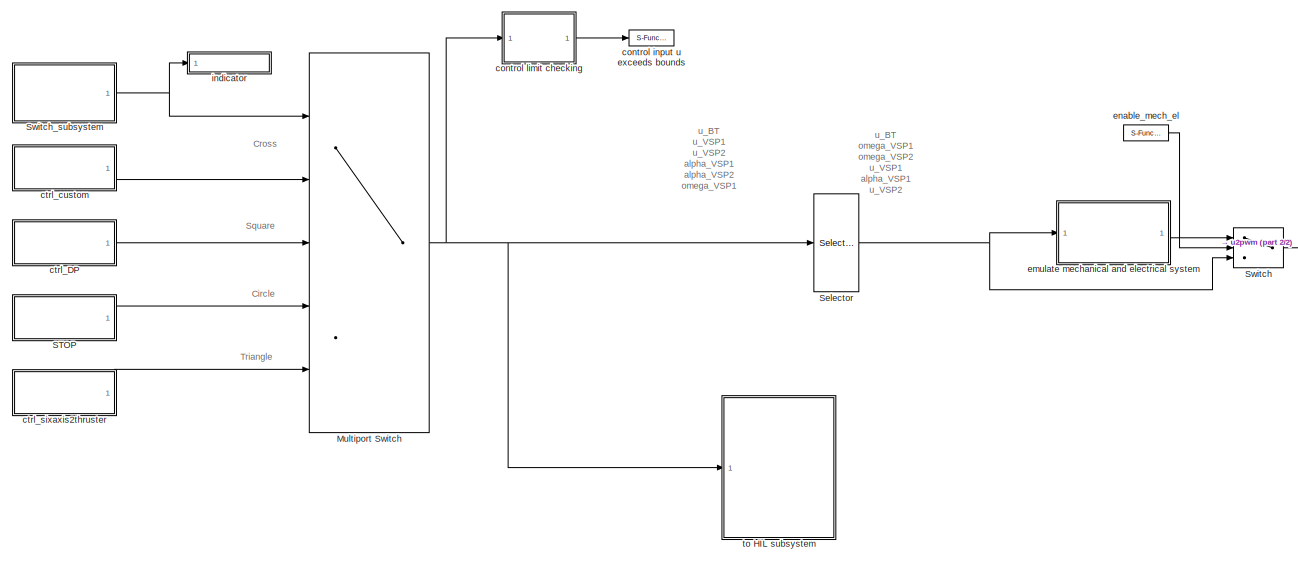
[diagram: root canvas - part 1/2, most of the canvas]
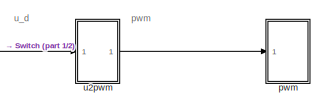
[diagram: root canvas - part 2/2, middle right region]
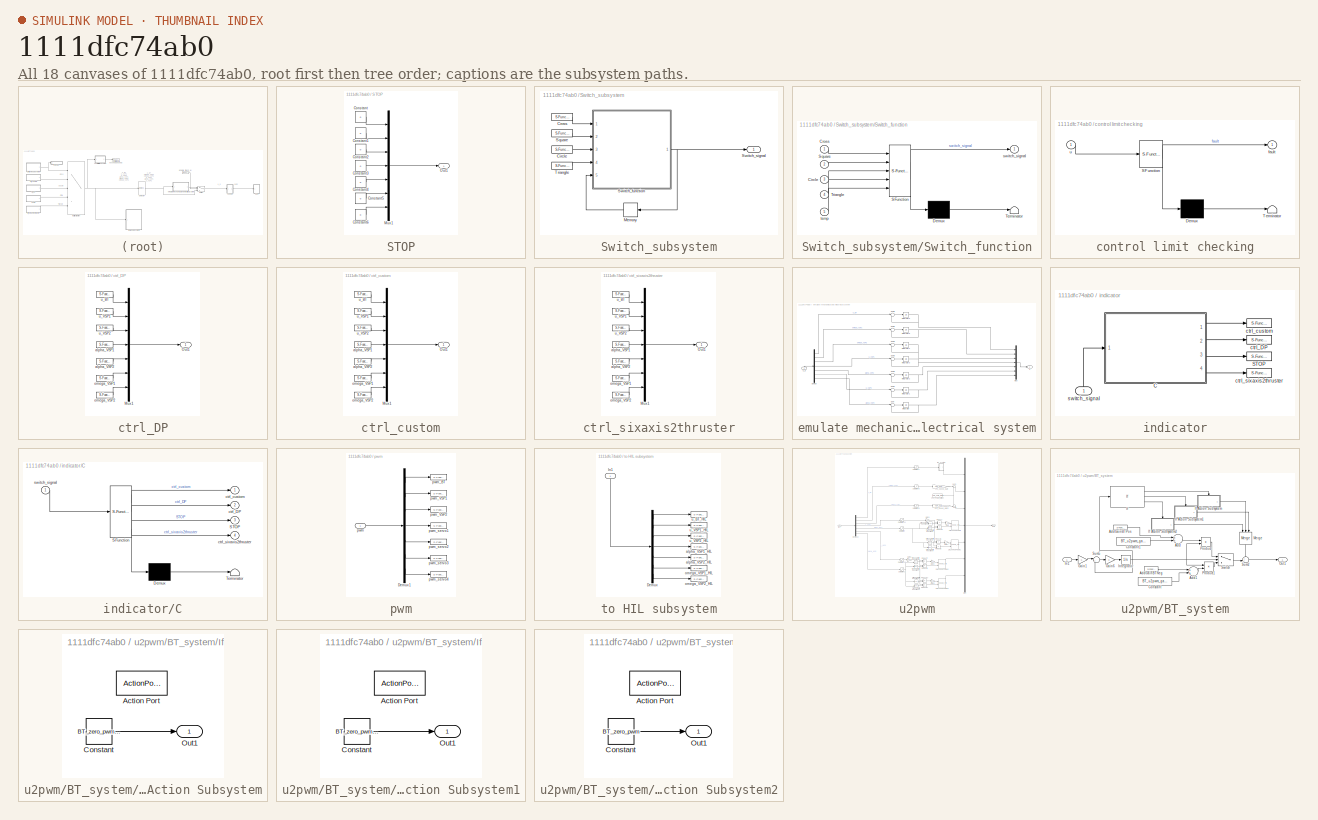
[diagram: thumbnail index - all 18 canvases of the model, root first then tree order]
MODEL slx_1111dfc74ab0
KIND model
CONFIG AbsTol = auto
CONFIG EnableMultiTasking = on
CONFIG FixedStep = 0.01
CONFIG MaxStep = auto
CONFIG MinStep = auto
CONFIG RelTol = 1e-3
CONFIG SampleTimeConstraint = Unconstrained
CONFIG Solver = ode4
CONFIG SolverName = ode4
CONFIG StartTime = 0.0
CONFIG StopTime = inf
BLOCK [MultiPortSwitch] Multiport Switch
  InputSameDT = off
  Inputs = 4
  Ports = [5, 1]
  SaturateOnIntegerOverflow = off
BLOCK [SubSystem] STOP
  Ports = [0, 1]
  RequestExecContextInheritance = off
  Variant = off
BLOCK [Constant] STOP/Constant
  Value = 0
BLOCK [Constant] STOP/Constant1
  Value = 0
BLOCK [Constant] STOP/Constant2
  Value = 0
BLOCK [Constant] STOP/Constant3
  Value = 0
BLOCK [Constant] STOP/Constant4
  Value = 0
BLOCK [Constant] STOP/Constant5
  Value = 0
BLOCK [Constant] STOP/Constant6
  Value = 0
BLOCK [Mux] STOP/Mux1
  DisplayOption = bar
  Inputs = 7
  Ports = [7, 1]
BLOCK [Outport] STOP/Out1
  IconDisplay = Port number
BLOCK [Selector] Selector
  IndexOptions = Index vector (dialog)
  Indices = [1 6 7 2 4 3 5]
  InputPortWidth = 7
  OutputSizes = 1
  Ports = [1, 1]
BLOCK [Switch] Switch
  Criteria = u2 ~= 0
  InputSameDT = off
  SaturateOnIntegerOverflow = off
BLOCK [SubSystem] Switch_subsystem
  Ports = [0, 1]
  RequestExecContextInheritance = off
  Variant = off
BLOCK [S-Function] Switch_subsystem/Circle
  CopyFcn = NIVeriStand_MDL_functions('', 'IO_copy');
  DeleteFcn = NIVeriStand_MDL_functions('', 'IO_delete');
  EnableBusSupport = off
  FunctionName = NIVeriStandIO
  MoveFcn = set_param(gcb, 'Mask', 'on');
  Parameters = width dtype portnum stime stype btype
  Ports = [0, 1]
  Priority = 2
  SFcnIsStateOwnerBlock = off
  SFunctionDeploymentMode = off
BLOCK [S-Function] Switch_subsystem/Cross
  CopyFcn = NIVeriStand_MDL_functions('', 'IO_copy');
  DeleteFcn = NIVeriStand_MDL_functions('', 'IO_delete');
  EnableBusSupport = off
  FunctionName = NIVeriStandIO
  MoveFcn = set_param(gcb, 'Mask', 'on');
  Parameters = width dtype portnum stime stype btype
  Ports = [0, 1]
  Priority = 3
  SFcnIsStateOwnerBlock = off
  SFunctionDeploymentMode = off
BLOCK [Memory] Switch_subsystem/Memory
  X0 = 4
BLOCK [S-Function] Switch_subsystem/Square
  CopyFcn = NIVeriStand_MDL_functions('', 'IO_copy');
  DeleteFcn = NIVeriStand_MDL_functions('', 'IO_delete');
  EnableBusSupport = off
  FunctionName = NIVeriStandIO
  MoveFcn = set_param(gcb, 'Mask', 'on');
  Parameters = width dtype portnum stime stype btype
  Ports = [0, 1]
  Priority = 4
  SFcnIsStateOwnerBlock = off
  SFunctionDeploymentMode = off
BLOCK [SubSystem] Switch_subsystem/Switch_function
  ErrorFcn = Stateflow.Translate.translate
  PermitHierarchicalResolution = ExplicitOnly
  Ports = [5, 1]
  RequestExecContextInheritance = off
  SFBlockType = MATLAB Function
  TreatAsAtomicUnit = on
  Variant = off
BLOCK [Demux] Switch_subsystem/Switch_function/ Demux 
  Outputs = 1
  Ports = [1, 1]
BLOCK [S-Function] Switch_subsystem/Switch_function/ SFunction 
  EnableBusSupport = on
  FunctionName = sf_sfun
  PortCounts = [5 2]
  Ports = [5, 2]
  SFcnIsStateOwnerBlock = off
  SFunctionDeploymentMode = off
  Tag = Stateflow S-Function u2pwm 2
BLOCK [Terminator] Switch_subsystem/Switch_function/ Terminator 
BLOCK [Inport] Switch_subsystem/Switch_function/Circle
  IconDisplay = Port number
  Port = 3
BLOCK [Inport] Switch_subsystem/Switch_function/Cross
  IconDisplay = Port number
BLOCK [Inport] Switch_subsystem/Switch_function/Square
  IconDisplay = Port number
  Port = 2
BLOCK [Inport] Switch_subsystem/Switch_function/Triangle
  IconDisplay = Port number
  Port = 4
BLOCK [Outport] Switch_subsystem/Switch_function/switch_signal
  IconDisplay = Port number
BLOCK [Inport] Switch_subsystem/Switch_function/temp
  IconDisplay = Port number
  Port = 5
BLOCK [Outport] Switch_subsystem/Switch_signal
  IconDisplay = Port number
BLOCK [S-Function] Switch_subsystem/Triangle
  CopyFcn = NIVeriStand_MDL_functions('', 'IO_copy');
  DeleteFcn = NIVeriStand_MDL_functions('', 'IO_delete');
  EnableBusSupport = off
  FunctionName = NIVeriStandIO
  MoveFcn = set_param(gcb, 'Mask', 'on');
  Parameters = width dtype portnum stime stype btype
  Ports = [0, 1]
  Priority = 1
  SFcnIsStateOwnerBlock = off
  SFunctionDeploymentMode = off
BLOCK [S-Function] control input u exceeds bounds
  CopyFcn = NIVeriStand_MDL_functions('', 'IO_copy');
  DeleteFcn = NIVeriStand_MDL_functions('', 'IO_delete');
  EnableBusSupport = off
  FunctionName = NIVeriStandIO
  MoveFcn = set_param(gcb, 'Mask', 'on');
  Parameters = width dtype portnum stime stype btype
  Ports = [1]
  Priority = 1
  SFcnIsStateOwnerBlock = off
  SFunctionDeploymentMode = off
BLOCK [SubSystem] control limit checking
  ErrorFcn = Stateflow.Translate.translate
  PermitHierarchicalResolution = ExplicitOnly
  Ports = [1, 1]
  RequestExecContextInheritance = off
  SFBlockType = MATLAB Function
  TreatAsAtomicUnit = on
  Variant = off
BLOCK [Demux] control limit checking/ Demux 
  Outputs = 1
  Ports = [1, 1]
BLOCK [S-Function] control limit checking/ SFunction 
  EnableBusSupport = on
  FunctionName = sf_sfun
  PortCounts = [1 2]
  Ports = [1, 2]
  SFcnIsStateOwnerBlock = off
  SFunctionDeploymentMode = off
  Tag = Stateflow S-Function u2pwm 3
BLOCK [Terminator] control limit checking/ Terminator 
BLOCK [Outport] control limit checking/fault
  IconDisplay = Port number
BLOCK [Inport] control limit checking/u
  IconDisplay = Port number
BLOCK [SubSystem] ctrl_DP
  Ports = [0, 1]
  RequestExecContextInheritance = off
  Variant = off
BLOCK [Mux] ctrl_DP/Mux1
  DisplayOption = bar
  Inputs = 7
  Ports = [7, 1]
BLOCK [Outport] ctrl_DP/Out1
  IconDisplay = Port number
BLOCK [S-Function] ctrl_DP/alpha_VSP1
  CopyFcn = NIVeriStand_MDL_functions('', 'IO_copy');
  DeleteFcn = NIVeriStand_MDL_functions('', 'IO_delete');
  EnableBusSupport = off
  FunctionName = NIVeriStandIO
  MoveFcn = set_param(gcb, 'Mask', 'on');
  Parameters = width dtype portnum stime stype btype
  Ports = [0, 1]
  Priority = 6
  SFcnIsStateOwnerBlock = off
  SFunctionDeploymentMode = off
BLOCK [S-Function] ctrl_DP/alpha_VSP2
  CopyFcn = NIVeriStand_MDL_functions('', 'IO_copy');
  DeleteFcn = NIVeriStand_MDL_functions('', 'IO_delete');
  EnableBusSupport = off
  FunctionName = NIVeriStandIO
  MoveFcn = set_param(gcb, 'Mask', 'on');
  Parameters = width dtype portnum stime stype btype
  Ports = [0, 1]
  Priority = 7
  SFcnIsStateOwnerBlock = off
  SFunctionDeploymentMode = off
BLOCK [S-Function] ctrl_DP/omega_VSP1
  CopyFcn = NIVeriStand_MDL_functions('', 'IO_copy');
  DeleteFcn = NIVeriStand_MDL_functions('', 'IO_delete');
  EnableBusSupport = off
  FunctionName = NIVeriStandIO
  MoveFcn = set_param(gcb, 'Mask', 'on');
  Parameters = width dtype portnum stime stype btype
  Ports = [0, 1]
  Priority = 3
  SFcnIsStateOwnerBlock = off
  SFunctionDeploymentMode = off
BLOCK [S-Function] ctrl_DP/omega_VSP2
  CopyFcn = NIVeriStand_MDL_functions('', 'IO_copy');
  DeleteFcn = NIVeriStand_MDL_functions('', 'IO_delete');
  EnableBusSupport = off
  FunctionName = NIVeriStandIO
  MoveFcn = set_param(gcb, 'Mask', 'on');
  Parameters = width dtype portnum stime stype btype
  Ports = [0, 1]
  Priority = 4
  SFcnIsStateOwnerBlock = off
  SFunctionDeploymentMode = off
BLOCK [S-Function] ctrl_DP/u_BT
  CopyFcn = NIVeriStand_MDL_functions('', 'IO_copy');
  DeleteFcn = NIVeriStand_MDL_functions('', 'IO_delete');
  EnableBusSupport = off
  FunctionName = NIVeriStandIO
  MoveFcn = set_param(gcb, 'Mask', 'on');
  Parameters = width dtype portnum stime stype btype
  Ports = [0, 1]
  Priority = 1
  SFcnIsStateOwnerBlock = off
  SFunctionDeploymentMode = off
BLOCK [S-Function] ctrl_DP/u_VSP1
  CopyFcn = NIVeriStand_MDL_functions('', 'IO_copy');
  DeleteFcn = NIVeriStand_MDL_functions('', 'IO_delete');
  EnableBusSupport = off
  FunctionName = NIVeriStandIO
  MoveFcn = set_param(gcb, 'Mask', 'on');
  Parameters = width dtype portnum stime stype btype
  Ports = [0, 1]
  Priority = 5
  SFcnIsStateOwnerBlock = off
  SFunctionDeploymentMode = off
BLOCK [S-Function] ctrl_DP/u_VSP2
  CopyFcn = NIVeriStand_MDL_functions('', 'IO_copy');
  DeleteFcn = NIVeriStand_MDL_functions('', 'IO_delete');
  EnableBusSupport = off
  FunctionName = NIVeriStandIO
  MoveFcn = set_param(gcb, 'Mask', 'on');
  Parameters = width dtype portnum stime stype btype
  Ports = [0, 1]
  Priority = 2
  SFcnIsStateOwnerBlock = off
  SFunctionDeploymentMode = off
BLOCK [SubSystem] ctrl_custom
  Ports = [0, 1]
  RequestExecContextInheritance = off
  Variant = off
BLOCK [Mux] ctrl_custom/Mux1
  DisplayOption = bar
  Inputs = 7
  Ports = [7, 1]
BLOCK [Outport] ctrl_custom/Out1
  IconDisplay = Port number
BLOCK [S-Function] ctrl_custom/alpha_VSP1
  CopyFcn = NIVeriStand_MDL_functions('', 'IO_copy');
  DeleteFcn = NIVeriStand_MDL_functions('', 'IO_delete');
  EnableBusSupport = off
  FunctionName = NIVeriStandIO
  MoveFcn = set_param(gcb, 'Mask', 'on');
  Parameters = width dtype portnum stime stype btype
  Ports = [0, 1]
  Priority = 6
  SFcnIsStateOwnerBlock = off
  SFunctionDeploymentMode = off
BLOCK [S-Function] ctrl_custom/alpha_VSP2
  CopyFcn = NIVeriStand_MDL_functions('', 'IO_copy');
  DeleteFcn = NIVeriStand_MDL_functions('', 'IO_delete');
  EnableBusSupport = off
  FunctionName = NIVeriStandIO
  MoveFcn = set_param(gcb, 'Mask', 'on');
  Parameters = width dtype portnum stime stype btype
  Ports = [0, 1]
  Priority = 7
  SFcnIsStateOwnerBlock = off
  SFunctionDeploymentMode = off
BLOCK [S-Function] ctrl_custom/omega_VSP1
  CopyFcn = NIVeriStand_MDL_functions('', 'IO_copy');
  DeleteFcn = NIVeriStand_MDL_functions('', 'IO_delete');
  EnableBusSupport = off
  FunctionName = NIVeriStandIO
  MoveFcn = set_param(gcb, 'Mask', 'on');
  Parameters = width dtype portnum stime stype btype
  Ports = [0, 1]
  Priority = 3
  SFcnIsStateOwnerBlock = off
  SFunctionDeploymentMode = off
BLOCK [S-Function] ctrl_custom/omega_VSP2
  CopyFcn = NIVeriStand_MDL_functions('', 'IO_copy');
  DeleteFcn = NIVeriStand_MDL_functions('', 'IO_delete');
  EnableBusSupport = off
  FunctionName = NIVeriStandIO
  MoveFcn = set_param(gcb, 'Mask', 'on');
  Parameters = width dtype portnum stime stype btype
  Ports = [0, 1]
  Priority = 4
  SFcnIsStateOwnerBlock = off
  SFunctionDeploymentMode = off
BLOCK [S-Function] ctrl_custom/u_BT
  CopyFcn = NIVeriStand_MDL_functions('', 'IO_copy');
  DeleteFcn = NIVeriStand_MDL_functions('', 'IO_delete');
  EnableBusSupport = off
  FunctionName = NIVeriStandIO
  MoveFcn = set_param(gcb, 'Mask', 'on');
  Parameters = width dtype portnum stime stype btype
  Ports = [0, 1]
  Priority = 1
  SFcnIsStateOwnerBlock = off
  SFunctionDeploymentMode = off
BLOCK [S-Function] ctrl_custom/u_VSP1
  CopyFcn = NIVeriStand_MDL_functions('', 'IO_copy');
  DeleteFcn = NIVeriStand_MDL_functions('', 'IO_delete');
  EnableBusSupport = off
  FunctionName = NIVeriStandIO
  MoveFcn = set_param(gcb, 'Mask', 'on');
  Parameters = width dtype portnum stime stype btype
  Ports = [0, 1]
  Priority = 5
  SFcnIsStateOwnerBlock = off
  SFunctionDeploymentMode = off
BLOCK [S-Function] ctrl_custom/u_VSP2
  CopyFcn = NIVeriStand_MDL_functions('', 'IO_copy');
  DeleteFcn = NIVeriStand_MDL_functions('', 'IO_delete');
  EnableBusSupport = off
  FunctionName = NIVeriStandIO
  MoveFcn = set_param(gcb, 'Mask', 'on');
  Parameters = width dtype portnum stime stype btype
  Ports = [0, 1]
  Priority = 2
  SFcnIsStateOwnerBlock = off
  SFunctionDeploymentMode = off
BLOCK [SubSystem] ctrl_sixaxis2thruster
  Ports = [0, 1]
  RequestExecContextInheritance = off
  Variant = off
BLOCK [Mux] ctrl_sixaxis2thruster/Mux1
  DisplayOption = bar
  Inputs = 7
  Ports = [7, 1]
BLOCK [Outport] ctrl_sixaxis2thruster/Out1
  IconDisplay = Port number
BLOCK [S-Function] ctrl_sixaxis2thruster/alpha_VSP1
  CopyFcn = NIVeriStand_MDL_functions('', 'IO_copy');
  DeleteFcn = NIVeriStand_MDL_functions('', 'IO_delete');
  EnableBusSupport = off
  FunctionName = NIVeriStandIO
  MoveFcn = set_param(gcb, 'Mask', 'on');
  Parameters = width dtype portnum stime stype btype
  Ports = [0, 1]
  Priority = 6
  SFcnIsStateOwnerBlock = off
  SFunctionDeploymentMode = off
BLOCK [S-Function] ctrl_sixaxis2thruster/alpha_VSP2
  CopyFcn = NIVeriStand_MDL_functions('', 'IO_copy');
  DeleteFcn = NIVeriStand_MDL_functions('', 'IO_delete');
  EnableBusSupport = off
  FunctionName = NIVeriStandIO
  MoveFcn = set_param(gcb, 'Mask', 'on');
  Parameters = width dtype portnum stime stype btype
  Ports = [0, 1]
  Priority = 7
  SFcnIsStateOwnerBlock = off
  SFunctionDeploymentMode = off
BLOCK [S-Function] ctrl_sixaxis2thruster/omega_VSP1
  CopyFcn = NIVeriStand_MDL_functions('', 'IO_copy');
  DeleteFcn = NIVeriStand_MDL_functions('', 'IO_delete');
  EnableBusSupport = off
  FunctionName = NIVeriStandIO
  MoveFcn = set_param(gcb, 'Mask', 'on');
  Parameters = width dtype portnum stime stype btype
  Ports = [0, 1]
  Priority = 3
  SFcnIsStateOwnerBlock = off
  SFunctionDeploymentMode = off
BLOCK [S-Function] ctrl_sixaxis2thruster/omega_VSP2
  CopyFcn = NIVeriStand_MDL_functions('', 'IO_copy');
  DeleteFcn = NIVeriStand_MDL_functions('', 'IO_delete');
  EnableBusSupport = off
  FunctionName = NIVeriStandIO
  MoveFcn = set_param(gcb, 'Mask', 'on');
  Parameters = width dtype portnum stime stype btype
  Ports = [0, 1]
  Priority = 4
  SFcnIsStateOwnerBlock = off
  SFunctionDeploymentMode = off
BLOCK [S-Function] ctrl_sixaxis2thruster/u_BT
  CopyFcn = NIVeriStand_MDL_functions('', 'IO_copy');
  DeleteFcn = NIVeriStand_MDL_functions('', 'IO_delete');
  EnableBusSupport = off
  FunctionName = NIVeriStandIO
  MoveFcn = set_param(gcb, 'Mask', 'on');
  Parameters = width dtype portnum stime stype btype
  Ports = [0, 1]
  Priority = 1
  SFcnIsStateOwnerBlock = off
  SFunctionDeploymentMode = off
BLOCK [S-Function] ctrl_sixaxis2thruster/u_VSP1
  CopyFcn = NIVeriStand_MDL_functions('', 'IO_copy');
  DeleteFcn = NIVeriStand_MDL_functions('', 'IO_delete');
  EnableBusSupport = off
  FunctionName = NIVeriStandIO
  MoveFcn = set_param(gcb, 'Mask', 'on');
  Parameters = width dtype portnum stime stype btype
  Ports = [0, 1]
  Priority = 5
  SFcnIsStateOwnerBlock = off
  SFunctionDeploymentMode = off
BLOCK [S-Function] ctrl_sixaxis2thruster/u_VSP2
  CopyFcn = NIVeriStand_MDL_functions('', 'IO_copy');
  DeleteFcn = NIVeriStand_MDL_functions('', 'IO_delete');
  EnableBusSupport = off
  FunctionName = NIVeriStandIO
  MoveFcn = set_param(gcb, 'Mask', 'on');
  Parameters = width dtype portnum stime stype btype
  Ports = [0, 1]
  Priority = 2
  SFcnIsStateOwnerBlock = off
  SFunctionDeploymentMode = off
BLOCK [SubSystem] emulate mechanical and electrical system
  Ports = [1, 1]
  RequestExecContextInheritance = off
  Variant = off
BLOCK [Demux] emulate mechanical and electrical system/Demux
  DisplayOption = bar
  Outputs = 7
  Ports = [1, 7]
BLOCK [Integrator] emulate mechanical and electrical system/Integrator
  Ports = [1, 1]
BLOCK [Integrator] emulate mechanical and electrical system/Integrator1
  Ports = [1, 1]
BLOCK [Integrator] emulate mechanical and electrical system/Integrator2
  Ports = [1, 1]
BLOCK [Integrator] emulate mechanical and electrical system/Integrator3
  Ports = [1, 1]
BLOCK [Integrator] emulate mechanical and electrical system/Integrator4
  Ports = [1, 1]
BLOCK [Integrator] emulate mechanical and electrical system/Integrator5
  Ports = [1, 1]
BLOCK [Integrator] emulate mechanical and electrical system/Integrator6
  Ports = [1, 1]
BLOCK [Mux] emulate mechanical and electrical system/Mux
  DisplayOption = bar
  Inputs = 7
  Ports = [7, 1]
BLOCK [Sum] emulate mechanical and electrical system/Sum
  IconShape = round
  InputSameDT = off
  Inputs = |+-
  OutDataTypeStr = Inherit: Inherit via internal rule
  Ports = [2, 1]
  SaturateOnIntegerOverflow = off
BLOCK [Sum] emulate mechanical and electrical system/Sum1
  IconShape = round
  InputSameDT = off
  Inputs = |+-
  OutDataTypeStr = Inherit: Inherit via internal rule
  Ports = [2, 1]
  SaturateOnIntegerOverflow = off
BLOCK [Sum] emulate mechanical and electrical system/Sum2
  IconShape = round
  InputSameDT = off
  Inputs = |+-
  OutDataTypeStr = Inherit: Inherit via internal rule
  Ports = [2, 1]
  SaturateOnIntegerOverflow = off
BLOCK [Sum] emulate mechanical and electrical system/Sum3
  IconShape = round
  InputSameDT = off
  Inputs = |+-
  OutDataTypeStr = Inherit: Inherit via internal rule
  Ports = [2, 1]
  SaturateOnIntegerOverflow = off
BLOCK [Sum] emulate mechanical and electrical system/Sum4
  IconShape = round
  InputSameDT = off
  Inputs = |+-
  OutDataTypeStr = Inherit: Inherit via internal rule
  Ports = [2, 1]
  SaturateOnIntegerOverflow = off
BLOCK [Sum] emulate mechanical and electrical system/Sum5
  IconShape = round
  InputSameDT = off
  Inputs = |+-
  OutDataTypeStr = Inherit: Inherit via internal rule
  Ports = [2, 1]
  SaturateOnIntegerOverflow = off
BLOCK [Sum] emulate mechanical and electrical system/Sum6
  IconShape = round
  InputSameDT = off
  Inputs = |+-
  OutDataTypeStr = Inherit: Inherit via internal rule
  Ports = [2, 1]
  SaturateOnIntegerOverflow = off
BLOCK [Outport] emulate mechanical and electrical system/u
  IconDisplay = Port number
BLOCK [Inport] emulate mechanical and electrical system/u_d
  IconDisplay = Port number
BLOCK [S-Function] enable_mech_el
  CopyFcn = NIVeriStand_MDL_functions('', 'IO_copy');
  DeleteFcn = NIVeriStand_MDL_functions('', 'IO_delete');
  EnableBusSupport = off
  FunctionName = NIVeriStandIO
  MoveFcn = set_param(gcb, 'Mask', 'on');
  Parameters = width dtype portnum stime stype btype
  Ports = [0, 1]
  Priority = 1
  SFcnIsStateOwnerBlock = off
  SFunctionDeploymentMode = off
BLOCK [SubSystem] indicator
  Ports = [1]
  RequestExecContextInheritance = off
  Variant = off
BLOCK [SubSystem] indicator/C
  ErrorFcn = Stateflow.Translate.translate
  PermitHierarchicalResolution = ExplicitOnly
  Ports = [1, 4]
  RequestExecContextInheritance = off
  SFBlockType = MATLAB Function
  TreatAsAtomicUnit = on
  Variant = off
BLOCK [Demux] indicator/C/ Demux 
  Outputs = 1
  Ports = [1, 1]
BLOCK [S-Function] indicator/C/ SFunction 
  EnableBusSupport = on
  FunctionName = sf_sfun
  PortCounts = [1 5]
  Ports = [1, 5]
  SFcnIsStateOwnerBlock = off
  SFunctionDeploymentMode = off
  Tag = Stateflow S-Function u2pwm 1
BLOCK [Terminator] indicator/C/ Terminator 
BLOCK [Outport] indicator/C/STOP
  IconDisplay = Port number
  Port = 3
BLOCK [Outport] indicator/C/ctrl_DP
  IconDisplay = Port number
  Port = 2
BLOCK [Outport] indicator/C/ctrl_custom
  IconDisplay = Port number
BLOCK [Outport] indicator/C/ctrl_sixaxis2thruster
  IconDisplay = Port number
  Port = 4
BLOCK [Inport] indicator/C/switch_signal
  IconDisplay = Port number
BLOCK [S-Function] indicator/STOP
  CopyFcn = NIVeriStand_MDL_functions('', 'IO_copy');
  DeleteFcn = NIVeriStand_MDL_functions('', 'IO_delete');
  EnableBusSupport = off
  FunctionName = NIVeriStandIO
  MoveFcn = set_param(gcb, 'Mask', 'on');
  Parameters = width dtype portnum stime stype btype
  Ports = [1]
  Priority = 10
  SFcnIsStateOwnerBlock = off
  SFunctionDeploymentMode = off
BLOCK [S-Function] indicator/ctrl_DP
  CopyFcn = NIVeriStand_MDL_functions('', 'IO_copy');
  DeleteFcn = NIVeriStand_MDL_functions('', 'IO_delete');
  EnableBusSupport = off
  FunctionName = NIVeriStandIO
  MoveFcn = set_param(gcb, 'Mask', 'on');
  Parameters = width dtype portnum stime stype btype
  Ports = [1]
  Priority = 9
  SFcnIsStateOwnerBlock = off
  SFunctionDeploymentMode = off
BLOCK [S-Function] indicator/ctrl_custom
  CopyFcn = NIVeriStand_MDL_functions('', 'IO_copy');
  DeleteFcn = NIVeriStand_MDL_functions('', 'IO_delete');
  EnableBusSupport = off
  FunctionName = NIVeriStandIO
  MoveFcn = set_param(gcb, 'Mask', 'on');
  Parameters = width dtype portnum stime stype btype
  Ports = [1]
  Priority = 8
  SFcnIsStateOwnerBlock = off
  SFunctionDeploymentMode = off
BLOCK [S-Function] indicator/ctrl_sixaxis2thruster
  CopyFcn = NIVeriStand_MDL_functions('', 'IO_copy');
  DeleteFcn = NIVeriStand_MDL_functions('', 'IO_delete');
  EnableBusSupport = off
  FunctionName = NIVeriStandIO
  MoveFcn = set_param(gcb, 'Mask', 'on');
  Parameters = width dtype portnum stime stype btype
  Ports = [1]
  Priority = 11
  SFcnIsStateOwnerBlock = off
  SFunctionDeploymentMode = off
BLOCK [Inport] indicator/switch_signal
  IconDisplay = Port number
BLOCK [SubSystem] pwm
  Ports = [1]
  RequestExecContextInheritance = off
  Variant = off
BLOCK [Demux] pwm/Demux1
  DisplayOption = bar
  Outputs = 7
  Ports = [1, 7]
BLOCK [Inport] pwm/pwm
  IconDisplay = Port number
BLOCK [S-Function] pwm/pwm_BT
  CopyFcn = NIVeriStand_MDL_functions('', 'IO_copy');
  DeleteFcn = NIVeriStand_MDL_functions('', 'IO_delete');
  EnableBusSupport = off
  FunctionName = NIVeriStandIO
  MoveFcn = set_param(gcb, 'Mask', 'on');
  Parameters = width dtype portnum stime stype btype
  Ports = [1]
  Priority = 3
  SFcnIsStateOwnerBlock = off
  SFunctionDeploymentMode = off
BLOCK [S-Function] pwm/pwm_VSP1
  CopyFcn = NIVeriStand_MDL_functions('', 'IO_copy');
  DeleteFcn = NIVeriStand_MDL_functions('', 'IO_delete');
  EnableBusSupport = off
  FunctionName = NIVeriStandIO
  MoveFcn = set_param(gcb, 'Mask', 'on');
  Parameters = width dtype portnum stime stype btype
  Ports = [1]
  Priority = 1
  SFcnIsStateOwnerBlock = off
  SFunctionDeploymentMode = off
BLOCK [S-Function] pwm/pwm_VSP2
  CopyFcn = NIVeriStand_MDL_functions('', 'IO_copy');
  DeleteFcn = NIVeriStand_MDL_functions('', 'IO_delete');
  EnableBusSupport = off
  FunctionName = NIVeriStandIO
  MoveFcn = set_param(gcb, 'Mask', 'on');
  Parameters = width dtype portnum stime stype btype
  Ports = [1]
  Priority = 2
  SFcnIsStateOwnerBlock = off
  SFunctionDeploymentMode = off
BLOCK [S-Function] pwm/pwm_servo1
  CopyFcn = NIVeriStand_MDL_functions('', 'IO_copy');
  DeleteFcn = NIVeriStand_MDL_functions('', 'IO_delete');
  EnableBusSupport = off
  FunctionName = NIVeriStandIO
  MoveFcn = set_param(gcb, 'Mask', 'on');
  Parameters = width dtype portnum stime stype btype
  Ports = [1]
  Priority = 6
  SFcnIsStateOwnerBlock = off
  SFunctionDeploymentMode = off
BLOCK [S-Function] pwm/pwm_servo2
  CopyFcn = NIVeriStand_MDL_functions('', 'IO_copy');
  DeleteFcn = NIVeriStand_MDL_functions('', 'IO_delete');
  EnableBusSupport = off
  FunctionName = NIVeriStandIO
  MoveFcn = set_param(gcb, 'Mask', 'on');
  Parameters = width dtype portnum stime stype btype
  Ports = [1]
  Priority = 7
  SFcnIsStateOwnerBlock = off
  SFunctionDeploymentMode = off
BLOCK [S-Function] pwm/pwm_servo3
  CopyFcn = NIVeriStand_MDL_functions('', 'IO_copy');
  DeleteFcn = NIVeriStand_MDL_functions('', 'IO_delete');
  EnableBusSupport = off
  FunctionName = NIVeriStandIO
  MoveFcn = set_param(gcb, 'Mask', 'on');
  Parameters = width dtype portnum stime stype btype
  Ports = [1]
  Priority = 5
  SFcnIsStateOwnerBlock = off
  SFunctionDeploymentMode = off
BLOCK [S-Function] pwm/pwm_servo4
  CopyFcn = NIVeriStand_MDL_functions('', 'IO_copy');
  DeleteFcn = NIVeriStand_MDL_functions('', 'IO_delete');
  EnableBusSupport = off
  FunctionName = NIVeriStandIO
  MoveFcn = set_param(gcb, 'Mask', 'on');
  Parameters = width dtype portnum stime stype btype
  Ports = [1]
  Priority = 4
  SFcnIsStateOwnerBlock = off
  SFunctionDeploymentMode = off
BLOCK [SubSystem] to HIL subsystem
  Ports = [1]
  RequestExecContextInheritance = off
  Variant = off
BLOCK [Demux] to HIL subsystem/Demux
  DisplayOption = bar
  Outputs = 7
  Ports = [1, 7]
BLOCK [Inport] to HIL subsystem/In1
  IconDisplay = Port number
BLOCK [S-Function] to HIL subsystem/alpha_VSP1_HIL
  CopyFcn = NIVeriStand_MDL_functions('', 'IO_copy');
  DeleteFcn = NIVeriStand_MDL_functions('', 'IO_delete');
  EnableBusSupport = off
  FunctionName = NIVeriStandIO
  MoveFcn = set_param(gcb, 'Mask', 'on');
  Parameters = width dtype portnum stime stype btype
  Ports = [1]
  Priority = 5
  SFcnIsStateOwnerBlock = off
  SFunctionDeploymentMode = off
BLOCK [S-Function] to HIL subsystem/alpha_VSP2_HIL
  CopyFcn = NIVeriStand_MDL_functions('', 'IO_copy');
  DeleteFcn = NIVeriStand_MDL_functions('', 'IO_delete');
  EnableBusSupport = off
  FunctionName = NIVeriStandIO
  MoveFcn = set_param(gcb, 'Mask', 'on');
  Parameters = width dtype portnum stime stype btype
  Ports = [1]
  Priority = 6
  SFcnIsStateOwnerBlock = off
  SFunctionDeploymentMode = off
BLOCK [S-Function] to HIL subsystem/omega_VSP1_HIL
  CopyFcn = NIVeriStand_MDL_functions('', 'IO_copy');
  DeleteFcn = NIVeriStand_MDL_functions('', 'IO_delete');
  EnableBusSupport = off
  FunctionName = NIVeriStandIO
  MoveFcn = set_param(gcb, 'Mask', 'on');
  Parameters = width dtype portnum stime stype btype
  Ports = [1]
  Priority = 7
  SFcnIsStateOwnerBlock = off
  SFunctionDeploymentMode = off
BLOCK [S-Function] to HIL subsystem/omega_VSP2_HIL
  CopyFcn = NIVeriStand_MDL_functions('', 'IO_copy');
  DeleteFcn = NIVeriStand_MDL_functions('', 'IO_delete');
  EnableBusSupport = off
  FunctionName = NIVeriStandIO
  MoveFcn = set_param(gcb, 'Mask', 'on');
  Parameters = width dtype portnum stime stype btype
  Ports = [1]
  Priority = 8
  SFcnIsStateOwnerBlock = off
  SFunctionDeploymentMode = off
BLOCK [S-Function] to HIL subsystem/u_BT_HIL
  CopyFcn = NIVeriStand_MDL_functions('', 'IO_copy');
  DeleteFcn = NIVeriStand_MDL_functions('', 'IO_delete');
  EnableBusSupport = off
  FunctionName = NIVeriStandIO
  MoveFcn = set_param(gcb, 'Mask', 'on');
  Parameters = width dtype portnum stime stype btype
  Ports = [1]
  Priority = 2
  SFcnIsStateOwnerBlock = off
  SFunctionDeploymentMode = off
BLOCK [S-Function] to HIL subsystem/u_VSP1_HIL
  CopyFcn = NIVeriStand_MDL_functions('', 'IO_copy');
  DeleteFcn = NIVeriStand_MDL_functions('', 'IO_delete');
  EnableBusSupport = off
  FunctionName = NIVeriStandIO
  MoveFcn = set_param(gcb, 'Mask', 'on');
  Parameters = width dtype portnum stime stype btype
  Ports = [1]
  Priority = 3
  SFcnIsStateOwnerBlock = off
  SFunctionDeploymentMode = off
BLOCK [S-Function] to HIL subsystem/u_VSP2_HIL
  CopyFcn = NIVeriStand_MDL_functions('', 'IO_copy');
  DeleteFcn = NIVeriStand_MDL_functions('', 'IO_delete');
  EnableBusSupport = off
  FunctionName = NIVeriStandIO
  MoveFcn = set_param(gcb, 'Mask', 'on');
  Parameters = width dtype portnum stime stype btype
  Ports = [1]
  Priority = 4
  SFcnIsStateOwnerBlock = off
  SFunctionDeploymentMode = off
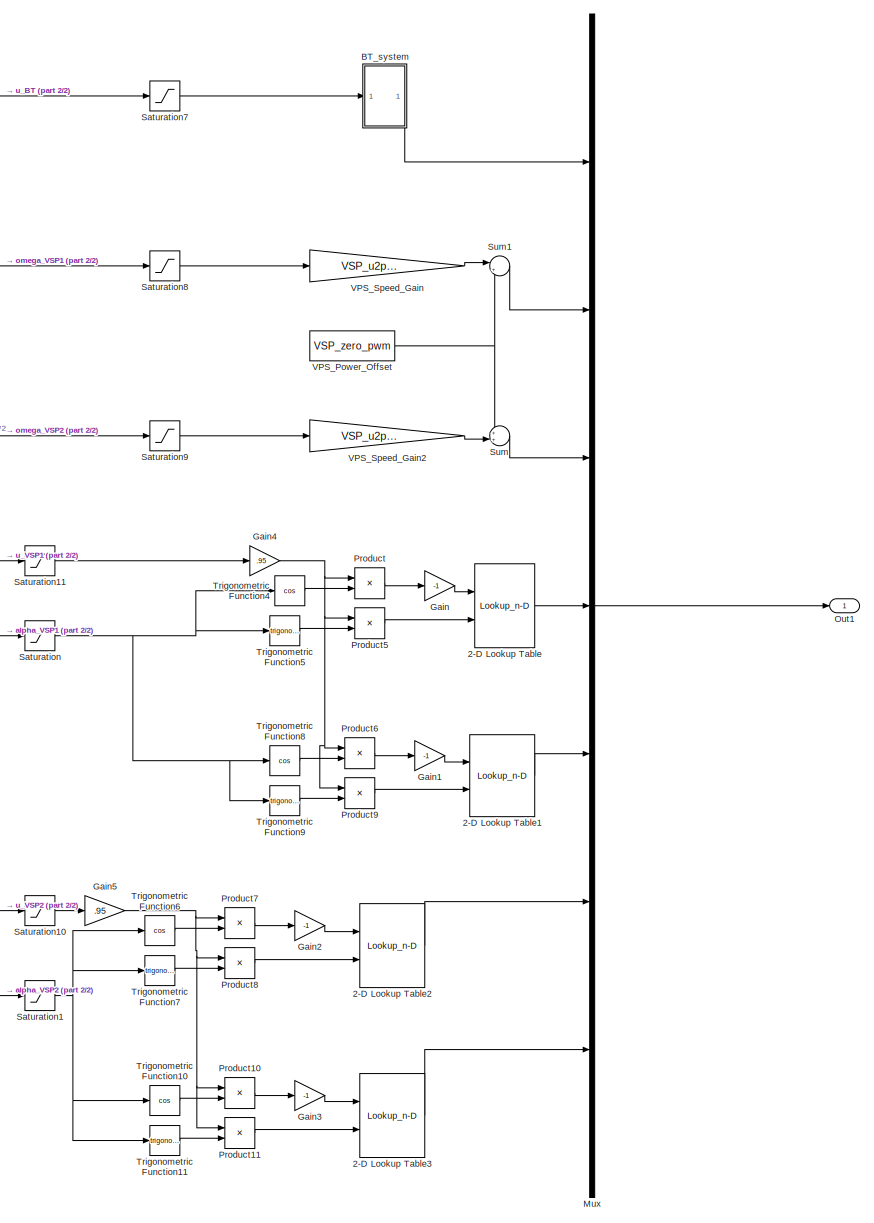
[diagram: u2pwm - part 1/2, right side, full height]
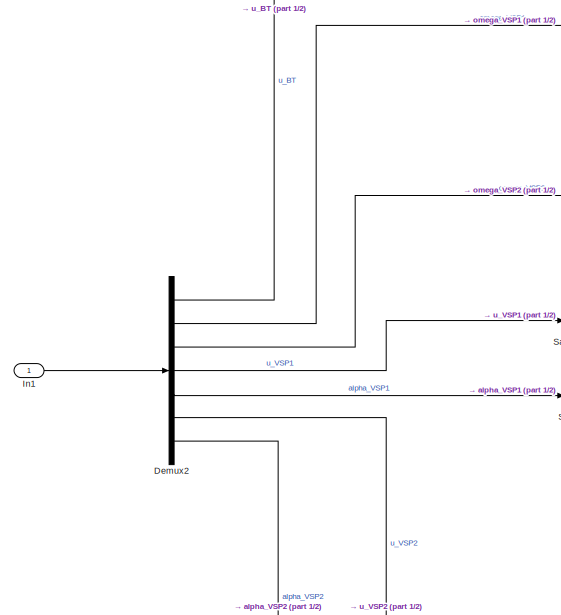
[diagram: u2pwm - part 2/2, middle left region]
BLOCK [SubSystem] u2pwm
  Ports = [1, 1]
  RequestExecContextInheritance = off
  Variant = off
BLOCK [Lookup_n-D] u2pwm/2-D Lookup Table
  BreakpointsForDimension1 = [-1,-0.7071067811865476,0,0.7071067811865476,1]
  BreakpointsForDimension2 = [-1,-0.7071067811865476,0,0.7071067811865476,1]
  Ports = [2, 1]
  RndMeth = Simplest
  Table = servo_mapping(:,:,1)
BLOCK [Lookup_n-D] u2pwm/2-D Lookup Table1
  BreakpointsForDimension1 = [-1,-0.7071067811865476,0,0.7071067811865476,1]
  BreakpointsForDimension2 = [-1,-0.7071067811865476,0,0.7071067811865476,1]
  Ports = [2, 1]
  RndMeth = Simplest
  Table = servo_mapping(:,:,2)
BLOCK [Lookup_n-D] u2pwm/2-D Lookup Table2
  BreakpointsForDimension1 = [-1,-0.7071067811865476,0,0.7071067811865476,1]
  BreakpointsForDimension2 = [-1,-0.7071067811865476,0,0.7071067811865476,1]
  Ports = [2, 1]
  RndMeth = Simplest
  Table = servo_mapping(:,:,3)
BLOCK [Lookup_n-D] u2pwm/2-D Lookup Table3
  BreakpointsForDimension1 = [-1,-0.7071067811865476,0,0.7071067811865476,1]
  BreakpointsForDimension2 = [-1,-0.7071067811865476,0,0.7071067811865476,1]
  Ports = [2, 1]
  RndMeth = Simplest
  Table = servo_mapping(:,:,4)
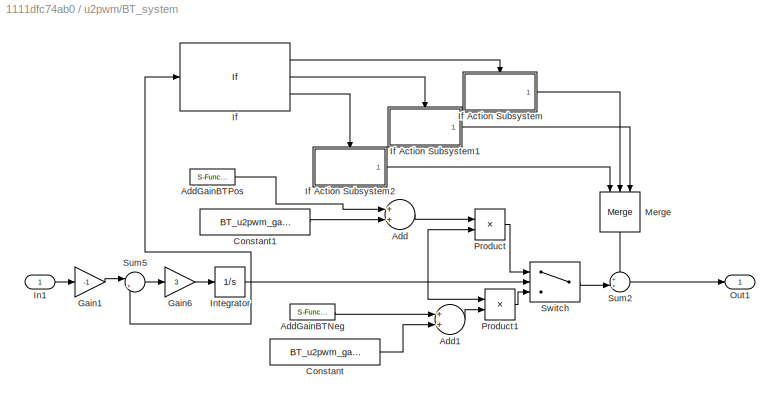
BLOCK [SubSystem] u2pwm/BT_system
  Ports = [1, 1]
  RequestExecContextInheritance = off
  Variant = off
BLOCK [Sum] u2pwm/BT_system/Add
  InputSameDT = off
  OutDataTypeStr = Inherit: Inherit via internal rule
  Ports = [2, 1]
  SaturateOnIntegerOverflow = off
BLOCK [Sum] u2pwm/BT_system/Add1
  InputSameDT = off
  OutDataTypeStr = Inherit: Inherit via internal rule
  Ports = [2, 1]
  SaturateOnIntegerOverflow = off
BLOCK [S-Function] u2pwm/BT_system/AddGainBTNeg
  CopyFcn = NIVeriStand_MDL_functions('', 'IO_copy');
  DeleteFcn = NIVeriStand_MDL_functions('', 'IO_delete');
  EnableBusSupport = off
  FunctionName = NIVeriStandIO
  MoveFcn = set_param(gcb, 'Mask', 'on');
  Parameters = width dtype portnum stime stype btype
  Ports = [0, 1]
  Priority = 2
  SFcnIsStateOwnerBlock = off
  SFunctionDeploymentMode = off
BLOCK [S-Function] u2pwm/BT_system/AddGainBTPos
  CopyFcn = NIVeriStand_MDL_functions('', 'IO_copy');
  DeleteFcn = NIVeriStand_MDL_functions('', 'IO_delete');
  EnableBusSupport = off
  FunctionName = NIVeriStandIO
  MoveFcn = set_param(gcb, 'Mask', 'on');
  Parameters = width dtype portnum stime stype btype
  Ports = [0, 1]
  Priority = 1
  SFcnIsStateOwnerBlock = off
  SFunctionDeploymentMode = off
BLOCK [Constant] u2pwm/BT_system/Constant
  Value = BT_u2pwm_gainNeg
BLOCK [Constant] u2pwm/BT_system/Constant1
  Value = BT_u2pwm_gainPos
BLOCK [Gain] u2pwm/BT_system/Gain1
  Gain = -1
  OutDataTypeStr = Inherit: Inherit via internal rule
  ParamDataTypeStr = Inherit: Inherit via internal rule
  SaturateOnIntegerOverflow = off
BLOCK [Gain] u2pwm/BT_system/Gain6
  Gain = 3
  OutDataTypeStr = Inherit: Inherit via internal rule
  ParamDataTypeStr = Inherit: Inherit via internal rule
  SaturateOnIntegerOverflow = off
BLOCK [If] u2pwm/BT_system/If
  ElseIfExpressions = u1 < -0.01
  IfExpression = u1 > 0.01
  Ports = [1, 3]
BLOCK [SubSystem] u2pwm/BT_system/If Action Subsystem
  Ports = [0, 1, 0, 0, 0, 0, 0, 1]
  RequestExecContextInheritance = off
  TreatAsAtomicUnit = on
  Variant = off
BLOCK [ActionPort] u2pwm/BT_system/If Action Subsystem/Action Port
  ActionType = then
BLOCK [Constant] u2pwm/BT_system/If Action Subsystem/Constant
  Value = BT_zero_pwm_pos
BLOCK [Outport] u2pwm/BT_system/If Action Subsystem/Out1
  IconDisplay = Port number
BLOCK [SubSystem] u2pwm/BT_system/If Action Subsystem1
  Ports = [0, 1, 0, 0, 0, 0, 0, 1]
  RequestExecContextInheritance = off
  TreatAsAtomicUnit = on
  Variant = off
BLOCK [ActionPort] u2pwm/BT_system/If Action Subsystem1/Action Port
  ActionType = elseif
BLOCK [Constant] u2pwm/BT_system/If Action Subsystem1/Constant
  Value = BT_zero_pwm_neg
BLOCK [Outport] u2pwm/BT_system/If Action Subsystem1/Out1
  IconDisplay = Port number
BLOCK [SubSystem] u2pwm/BT_system/If Action Subsystem2
  Ports = [0, 1, 0, 0, 0, 0, 0, 1]
  RequestExecContextInheritance = off
  TreatAsAtomicUnit = on
  Variant = off
BLOCK [ActionPort] u2pwm/BT_system/If Action Subsystem2/Action Port
  ActionType = else
BLOCK [Constant] u2pwm/BT_system/If Action Subsystem2/Constant
  Value = BT_zero_pwm
BLOCK [Outport] u2pwm/BT_system/If Action Subsystem2/Out1
  IconDisplay = Port number
BLOCK [Inport] u2pwm/BT_system/In1
  IconDisplay = Port number
BLOCK [Integrator] u2pwm/BT_system/Integrator
  Ports = [1, 1]
BLOCK [Merge] u2pwm/BT_system/Merge
  Inputs = 3
  Ports = [3, 1]
BLOCK [Outport] u2pwm/BT_system/Out1
  IconDisplay = Port number
BLOCK [Product] u2pwm/BT_system/Product
  InputSameDT = off
  OutDataTypeStr = Inherit: Inherit via internal rule
  Ports = [2, 1]
  RndMeth = Floor
  SaturateOnIntegerOverflow = off
BLOCK [Product] u2pwm/BT_system/Product1
  InputSameDT = off
  OutDataTypeStr = Inherit: Inherit via internal rule
  Ports = [2, 1]
  RndMeth = Floor
  SaturateOnIntegerOverflow = off
BLOCK [Sum] u2pwm/BT_system/Sum2
  IconShape = round
  InputSameDT = off
  Inputs = ++|
  OutDataTypeStr = Inherit: Inherit via internal rule
  Ports = [2, 1]
  SaturateOnIntegerOverflow = off
BLOCK [Sum] u2pwm/BT_system/Sum5
  IconShape = round
  InputSameDT = off
  Inputs = |+-
  OutDataTypeStr = Inherit: Inherit via internal rule
  Ports = [2, 1]
  SaturateOnIntegerOverflow = off
BLOCK [Switch] u2pwm/BT_system/Switch
  Criteria = u2 > Threshold
  InputSameDT = off
  SaturateOnIntegerOverflow = off
BLOCK [Demux] u2pwm/Demux2
  DisplayOption = bar
  Outputs = 7
  Ports = [1, 7]
BLOCK [Gain] u2pwm/Gain
  Gain = -1
  OutDataTypeStr = Inherit: Inherit via internal rule
  ParamDataTypeStr = Inherit: Inherit via internal rule
  SaturateOnIntegerOverflow = off
BLOCK [Gain] u2pwm/Gain1
  Gain = -1
  OutDataTypeStr = Inherit: Inherit via internal rule
  ParamDataTypeStr = Inherit: Inherit via internal rule
  SaturateOnIntegerOverflow = off
BLOCK [Gain] u2pwm/Gain2
  Gain = -1
  OutDataTypeStr = Inherit: Inherit via internal rule
  ParamDataTypeStr = Inherit: Inherit via internal rule
  SaturateOnIntegerOverflow = off
BLOCK [Gain] u2pwm/Gain3
  Gain = -1
  OutDataTypeStr = Inherit: Inherit via internal rule
  ParamDataTypeStr = Inherit: Inherit via internal rule
  SaturateOnIntegerOverflow = off
BLOCK [Gain] u2pwm/Gain4
  Gain = .95
  OutDataTypeStr = Inherit: Inherit via internal rule
  ParamDataTypeStr = Inherit: Inherit via internal rule
  SaturateOnIntegerOverflow = off
BLOCK [Gain] u2pwm/Gain5
  Gain = .95
  OutDataTypeStr = Inherit: Inherit via internal rule
  ParamDataTypeStr = Inherit: Inherit via internal rule
  SaturateOnIntegerOverflow = off
BLOCK [Inport] u2pwm/In1
  IconDisplay = Port number
BLOCK [Mux] u2pwm/Mux
  DisplayOption = bar
  Inputs = 7
  Ports = [7, 1]
BLOCK [Outport] u2pwm/Out1
  IconDisplay = Port number
BLOCK [Product] u2pwm/Product
  InputSameDT = off
  OutDataTypeStr = Inherit: Inherit via internal rule
  Ports = [2, 1]
  RndMeth = Floor
  SaturateOnIntegerOverflow = off
BLOCK [Product] u2pwm/Product10
  InputSameDT = off
  OutDataTypeStr = Inherit: Inherit via internal rule
  Ports = [2, 1]
  RndMeth = Floor
  SaturateOnIntegerOverflow = off
BLOCK [Product] u2pwm/Product11
  InputSameDT = off
  OutDataTypeStr = Inherit: Inherit via internal rule
  Ports = [2, 1]
  RndMeth = Floor
  SaturateOnIntegerOverflow = off
BLOCK [Product] u2pwm/Product5
  InputSameDT = off
  OutDataTypeStr = Inherit: Inherit via internal rule
  Ports = [2, 1]
  RndMeth = Floor
  SaturateOnIntegerOverflow = off
BLOCK [Product] u2pwm/Product6
  InputSameDT = off
  OutDataTypeStr = Inherit: Inherit via internal rule
  Ports = [2, 1]
  RndMeth = Floor
  SaturateOnIntegerOverflow = off
BLOCK [Product] u2pwm/Product7
  InputSameDT = off
  OutDataTypeStr = Inherit: Inherit via internal rule
  Ports = [2, 1]
  RndMeth = Floor
  SaturateOnIntegerOverflow = off
BLOCK [Product] u2pwm/Product8
  InputSameDT = off
  OutDataTypeStr = Inherit: Inherit via internal rule
  Ports = [2, 1]
  RndMeth = Floor
  SaturateOnIntegerOverflow = off
BLOCK [Product] u2pwm/Product9
  InputSameDT = off
  OutDataTypeStr = Inherit: Inherit via internal rule
  Ports = [2, 1]
  RndMeth = Floor
  SaturateOnIntegerOverflow = off
BLOCK [Saturate] u2pwm/Saturation
  InputPortMap = u0
  LowerLimit = -pi
  Ports = [1, 1]
  UpperLimit = pi
BLOCK [Saturate] u2pwm/Saturation1
  InputPortMap = u0
  LowerLimit = -pi
  Ports = [1, 1]
  UpperLimit = pi
BLOCK [Saturate] u2pwm/Saturation10
  InputPortMap = u0
  LowerLimit = 0
  Ports = [1, 1]
  UpperLimit = 1
BLOCK [Saturate] u2pwm/Saturation11
  InputPortMap = u0
  LowerLimit = 0
  Ports = [1, 1]
  UpperLimit = 1
BLOCK [Saturate] u2pwm/Saturation7
  InputPortMap = u0
  LowerLimit = -1
  Ports = [1, 1]
  UpperLimit = 1
BLOCK [Saturate] u2pwm/Saturation8
  InputPortMap = u0
  LowerLimit = 0
  Ports = [1, 1]
  UpperLimit = 0.3
BLOCK [Saturate] u2pwm/Saturation9
  InputPortMap = u0
  LowerLimit = 0
  Ports = [1, 1]
  UpperLimit = 0.3
BLOCK [Sum] u2pwm/Sum
  IconShape = round
  InputSameDT = off
  Inputs = ++|
  OutDataTypeStr = Inherit: Inherit via internal rule
  Ports = [2, 1]
  SaturateOnIntegerOverflow = off
BLOCK [Sum] u2pwm/Sum1
  IconShape = round
  InputSameDT = off
  Inputs = |++
  OutDataTypeStr = Inherit: Inherit via internal rule
  Ports = [2, 1]
  SaturateOnIntegerOverflow = off
BLOCK [Trigonometry] u2pwm/Trigonometric Function10
  Operator = cos
  Ports = [1, 1]
BLOCK [Trigonometry] u2pwm/Trigonometric Function11
  Ports = [1, 1]
BLOCK [Trigonometry] u2pwm/Trigonometric Function4
  Operator = cos
  Ports = [1, 1]
BLOCK [Trigonometry] u2pwm/Trigonometric Function5
  Ports = [1, 1]
BLOCK [Trigonometry] u2pwm/Trigonometric Function6
  Operator = cos
  Ports = [1, 1]
BLOCK [Trigonometry] u2pwm/Trigonometric Function7
  Ports = [1, 1]
BLOCK [Trigonometry] u2pwm/Trigonometric Function8
  Operator = cos
  Ports = [1, 1]
BLOCK [Trigonometry] u2pwm/Trigonometric Function9
  Ports = [1, 1]
BLOCK [Constant] u2pwm/VPS_Power_Offset
  Value = VSP_zero_pwm
BLOCK [Gain] u2pwm/VPS_Speed_Gain
  Gain = VSP_u2pwm_gain
  OutDataTypeStr = Inherit: Inherit via internal rule
  ParamDataTypeStr = Inherit: Inherit via internal rule
  SaturateOnIntegerOverflow = off
BLOCK [Gain] u2pwm/VPS_Speed_Gain2
  Gain = VSP_u2pwm_gain
  OutDataTypeStr = Inherit: Inherit via internal rule
  ParamDataTypeStr = Inherit: Inherit via internal rule
  SaturateOnIntegerOverflow = off
ANNOTATION (root): Circle
ANNOTATION (root): Cross
ANNOTATION (root): Square
ANNOTATION (root): Triangle
ANNOTATION (root): pwm
ANNOTATION (root): u_BT omega_VSP1 omega_VSP2 u_VSP1 alpha_VSP1 u_VSP2 alpha_VSP2
ANNOTATION (root): u_BT u_VSP1 u_VSP2 alpha_VSP1 alpha_VSP2 omega_VSP1 omega_VSP2
ANNOTATION (root): u_d
NET Multiport Switch:1 -> Selector:1, control limit checking:1, to HIL subsystem:1
LINE STOP/Constant1:1 -> STOP/Mux1:2
LINE STOP/Constant2:1 -> STOP/Mux1:3
LINE STOP/Constant3:1 -> STOP/Mux1:4
LINE STOP/Constant4:1 -> STOP/Mux1:5
LINE STOP/Constant5:1 -> STOP/Mux1:6
LINE STOP/Constant6:1 -> STOP/Mux1:7
LINE STOP/Constant:1 -> STOP/Mux1:1
LINE STOP/Mux1:1 -> STOP/Out1:1
LINE STOP:1 -> Multiport Switch:4
NET Selector:1 -> Switch:3, emulate mechanical and electrical system:1
LINE Switch:1 -> u2pwm:1
LINE Switch_subsystem/Circle:1 -> Switch_subsystem/Switch_function:3
LINE Switch_subsystem/Cross:1 -> Switch_subsystem/Switch_function:1
LINE Switch_subsystem/Memory:1 -> Switch_subsystem/Switch_function:5
LINE Switch_subsystem/Square:1 -> Switch_subsystem/Switch_function:2
NET Switch_subsystem/Switch_function:1 -> Switch_subsystem/Memory:1, Switch_subsystem/Switch_signal:1
LINE Switch_subsystem/Triangle:1 -> Switch_subsystem/Switch_function:4
NET Switch_subsystem:1 -> Multiport Switch:1, indicator:1
LINE control limit checking:1 -> control input u exceeds bounds:1
LINE ctrl_DP/Mux1:1 -> ctrl_DP/Out1:1
LINE ctrl_DP/alpha_VSP1:1 -> ctrl_DP/Mux1:4
LINE ctrl_DP/alpha_VSP2:1 -> ctrl_DP/Mux1:5
LINE ctrl_DP/omega_VSP1:1 -> ctrl_DP/Mux1:6
LINE ctrl_DP/omega_VSP2:1 -> ctrl_DP/Mux1:7
LINE ctrl_DP/u_BT:1 -> ctrl_DP/Mux1:1
LINE ctrl_DP/u_VSP1:1 -> ctrl_DP/Mux1:2
LINE ctrl_DP/u_VSP2:1 -> ctrl_DP/Mux1:3
LINE ctrl_DP:1 -> Multiport Switch:3
LINE ctrl_custom/Mux1:1 -> ctrl_custom/Out1:1
LINE ctrl_custom/alpha_VSP1:1 -> ctrl_custom/Mux1:4
LINE ctrl_custom/alpha_VSP2:1 -> ctrl_custom/Mux1:5
LINE ctrl_custom/omega_VSP1:1 -> ctrl_custom/Mux1:6
LINE ctrl_custom/omega_VSP2:1 -> ctrl_custom/Mux1:7
LINE ctrl_custom/u_BT:1 -> ctrl_custom/Mux1:1
LINE ctrl_custom/u_VSP1:1 -> ctrl_custom/Mux1:2
LINE ctrl_custom/u_VSP2:1 -> ctrl_custom/Mux1:3
LINE ctrl_custom:1 -> Multiport Switch:2
LINE ctrl_sixaxis2thruster/Mux1:1 -> ctrl_sixaxis2thruster/Out1:1
LINE ctrl_sixaxis2thruster/alpha_VSP1:1 -> ctrl_sixaxis2thruster/Mux1:4
LINE ctrl_sixaxis2thruster/alpha_VSP2:1 -> ctrl_sixaxis2thruster/Mux1:5
LINE ctrl_sixaxis2thruster/omega_VSP1:1 -> ctrl_sixaxis2thruster/Mux1:6
LINE ctrl_sixaxis2thruster/omega_VSP2:1 -> ctrl_sixaxis2thruster/Mux1:7
LINE ctrl_sixaxis2thruster/u_BT:1 -> ctrl_sixaxis2thruster/Mux1:1
LINE ctrl_sixaxis2thruster/u_VSP1:1 -> ctrl_sixaxis2thruster/Mux1:2
LINE ctrl_sixaxis2thruster/u_VSP2:1 -> ctrl_sixaxis2thruster/Mux1:3
LINE ctrl_sixaxis2thruster:1 -> Multiport Switch:5
LINE emulate mechanical and electrical system/Demux:1 -> emulate mechanical and electrical system/Sum6:1
LINE emulate mechanical and electrical system/Demux:2 -> emulate mechanical and electrical system/Sum5:1
LINE emulate mechanical and electrical system/Demux:3 -> emulate mechanical and electrical system/Sum4:1
LINE emulate mechanical and electrical system/Demux:4 -> emulate mechanical and electrical system/Sum3:1
LINE emulate mechanical and electrical system/Demux:5 -> emulate mechanical and electrical system/Sum2:1
LINE emulate mechanical and electrical system/Demux:6 -> emulate mechanical and electrical system/Sum1:1
LINE emulate mechanical and electrical system/Demux:7 -> emulate mechanical and electrical system/Sum:1
NET emulate mechanical and electrical system/Integrator1:1 -> emulate mechanical and electrical system/Mux:6, emulate mechanical and electrical system/Sum1:2
NET emulate mechanical and electrical system/Integrator2:1 -> emulate mechanical and electrical system/Mux:5, emulate mechanical and electrical system/Sum2:2
NET emulate mechanical and electrical system/Integrator3:1 -> emulate mechanical and electrical system/Mux:4, emulate mechanical and electrical system/Sum3:2
NET emulate mechanical and electrical system/Integrator4:1 -> emulate mechanical and electrical system/Mux:3, emulate mechanical and electrical system/Sum4:2
NET emulate mechanical and electrical system/Integrator5:1 -> emulate mechanical and electrical system/Mux:2, emulate mechanical and electrical system/Sum5:2
NET emulate mechanical and electrical system/Integrator6:1 -> emulate mechanical and electrical system/Mux:1, emulate mechanical and electrical system/Sum6:2
NET emulate mechanical and electrical system/Integrator:1 -> emulate mechanical and electrical system/Mux:7, emulate mechanical and electrical system/Sum:2
LINE emulate mechanical and electrical system/Mux:1 -> emulate mechanical and electrical system/u:1
LINE emulate mechanical and electrical system/Sum1:1 -> emulate mechanical and electrical system/Integrator1:1
LINE emulate mechanical and electrical system/Sum2:1 -> emulate mechanical and electrical system/Integrator2:1
LINE emulate mechanical and electrical system/Sum3:1 -> emulate mechanical and electrical system/Integrator3:1
LINE emulate mechanical and electrical system/Sum4:1 -> emulate mechanical and electrical system/Integrator4:1
LINE emulate mechanical and electrical system/Sum5:1 -> emulate mechanical and electrical system/Integrator5:1
LINE emulate mechanical and electrical system/Sum6:1 -> emulate mechanical and electrical system/Integrator6:1
LINE emulate mechanical and electrical system/Sum:1 -> emulate mechanical and electrical system/Integrator:1
LINE emulate mechanical and electrical system/u_d:1 -> emulate mechanical and electrical system/Demux:1
LINE emulate mechanical and electrical system:1 -> Switch:1
LINE enable_mech_el:1 -> Switch:2
LINE indicator/C:1 -> indicator/ctrl_custom:1
LINE indicator/C:2 -> indicator/ctrl_DP:1
LINE indicator/C:3 -> indicator/STOP:1
LINE indicator/C:4 -> indicator/ctrl_sixaxis2thruster:1
LINE indicator/switch_signal:1 -> indicator/C:1
LINE pwm/Demux1:1 -> pwm/pwm_BT:1
LINE pwm/Demux1:2 -> pwm/pwm_VSP1:1
LINE pwm/Demux1:3 -> pwm/pwm_VSP2:1
LINE pwm/Demux1:4 -> pwm/pwm_servo1:1
LINE pwm/Demux1:5 -> pwm/pwm_servo2:1
LINE pwm/Demux1:6 -> pwm/pwm_servo3:1
LINE pwm/Demux1:7 -> pwm/pwm_servo4:1
LINE pwm/pwm:1 -> pwm/Demux1:1
LINE to HIL subsystem/Demux:1 -> to HIL subsystem/u_BT_HIL:1
LINE to HIL subsystem/Demux:2 -> to HIL subsystem/u_VSP1_HIL:1
LINE to HIL subsystem/Demux:3 -> to HIL subsystem/u_VSP2_HIL:1
LINE to HIL subsystem/Demux:4 -> to HIL subsystem/alpha_VSP1_HIL:1
LINE to HIL subsystem/Demux:5 -> to HIL subsystem/alpha_VSP2_HIL:1
LINE to HIL subsystem/Demux:6 -> to HIL subsystem/omega_VSP1_HIL:1
LINE to HIL subsystem/Demux:7 -> to HIL subsystem/omega_VSP2_HIL:1
LINE to HIL subsystem/In1:1 -> to HIL subsystem/Demux:1
LINE u2pwm/2-D Lookup Table1:1 -> u2pwm/Mux:5
LINE u2pwm/2-D Lookup Table2:1 -> u2pwm/Mux:6
LINE u2pwm/2-D Lookup Table3:1 -> u2pwm/Mux:7
LINE u2pwm/2-D Lookup Table:1 -> u2pwm/Mux:4
LINE u2pwm/BT_system/Add1:1 -> u2pwm/BT_system/Product1:2
LINE u2pwm/BT_system/Add:1 -> u2pwm/BT_system/Product:1
LINE u2pwm/BT_system/AddGainBTNeg:1 -> u2pwm/BT_system/Add1:1
LINE u2pwm/BT_system/AddGainBTPos:1 -> u2pwm/BT_system/Add:1
LINE u2pwm/BT_system/Constant1:1 -> u2pwm/BT_system/Add:2
LINE u2pwm/BT_system/Constant:1 -> u2pwm/BT_system/Add1:2
LINE u2pwm/BT_system/Gain1:1 -> u2pwm/BT_system/Sum5:1
LINE u2pwm/BT_system/Gain6:1 -> u2pwm/BT_system/Integrator:1
LINE u2pwm/BT_system/If Action Subsystem/Constant:1 -> u2pwm/BT_system/If Action Subsystem/Out1:1
LINE u2pwm/BT_system/If Action Subsystem1/Constant:1 -> u2pwm/BT_system/If Action Subsystem1/Out1:1
LINE u2pwm/BT_system/If Action Subsystem1:1 -> u2pwm/BT_system/Merge:3
LINE u2pwm/BT_system/If Action Subsystem2/Constant:1 -> u2pwm/BT_system/If Action Subsystem2/Out1:1
LINE u2pwm/BT_system/If Action Subsystem2:1 -> u2pwm/BT_system/Merge:1
LINE u2pwm/BT_system/If Action Subsystem:1 -> u2pwm/BT_system/Merge:2
LINE u2pwm/BT_system/If:1 -> u2pwm/BT_system/If Action Subsystem:ifaction
LINE u2pwm/BT_system/If:2 -> u2pwm/BT_system/If Action Subsystem1:ifaction
LINE u2pwm/BT_system/If:3 -> u2pwm/BT_system/If Action Subsystem2:ifaction
LINE u2pwm/BT_system/In1:1 -> u2pwm/BT_system/Gain1:1
NET u2pwm/BT_system/Integrator:1 -> u2pwm/BT_system/If:1, u2pwm/BT_system/Product1:1, u2pwm/BT_system/Product:2, u2pwm/BT_system/Sum5:2, u2pwm/BT_system/Switch:2
LINE u2pwm/BT_system/Merge:1 -> u2pwm/BT_system/Sum2:1
LINE u2pwm/BT_system/Product1:1 -> u2pwm/BT_system/Switch:3
LINE u2pwm/BT_system/Product:1 -> u2pwm/BT_system/Switch:1
LINE u2pwm/BT_system/Sum2:1 -> u2pwm/BT_system/Out1:1
LINE u2pwm/BT_system/Sum5:1 -> u2pwm/BT_system/Gain6:1
LINE u2pwm/BT_system/Switch:1 -> u2pwm/BT_system/Sum2:2
LINE u2pwm/BT_system:1 -> u2pwm/Mux:1
LINE u2pwm/Demux2:1 -> u2pwm/Saturation7:1
LINE u2pwm/Demux2:2 -> u2pwm/Saturation8:1
LINE u2pwm/Demux2:3 -> u2pwm/Saturation9:1
LINE u2pwm/Demux2:4 -> u2pwm/Saturation11:1
LINE u2pwm/Demux2:5 -> u2pwm/Saturation:1
LINE u2pwm/Demux2:6 -> u2pwm/Saturation10:1
LINE u2pwm/Demux2:7 -> u2pwm/Saturation1:1
LINE u2pwm/Gain1:1 -> u2pwm/2-D Lookup Table1:1
LINE u2pwm/Gain2:1 -> u2pwm/2-D Lookup Table2:1
LINE u2pwm/Gain3:1 -> u2pwm/2-D Lookup Table3:1
NET u2pwm/Gain4:1 -> u2pwm/Product5:1, u2pwm/Product6:1, u2pwm/Product9:1, u2pwm/Product:1
NET u2pwm/Gain5:1 -> u2pwm/Product10:1, u2pwm/Product11:1, u2pwm/Product7:1, u2pwm/Product8:1
LINE u2pwm/Gain:1 -> u2pwm/2-D Lookup Table:1
LINE u2pwm/In1:1 -> u2pwm/Demux2:1
LINE u2pwm/Mux:1 -> u2pwm/Out1:1
LINE u2pwm/Product10:1 -> u2pwm/Gain3:1
LINE u2pwm/Product11:1 -> u2pwm/2-D Lookup Table3:2
LINE u2pwm/Product5:1 -> u2pwm/2-D Lookup Table:2
LINE u2pwm/Product6:1 -> u2pwm/Gain1:1
LINE u2pwm/Product7:1 -> u2pwm/Gain2:1
LINE u2pwm/Product8:1 -> u2pwm/2-D Lookup Table2:2
LINE u2pwm/Product9:1 -> u2pwm/2-D Lookup Table1:2
LINE u2pwm/Product:1 -> u2pwm/Gain:1
LINE u2pwm/Saturation10:1 -> u2pwm/Gain5:1
LINE u2pwm/Saturation11:1 -> u2pwm/Gain4:1
NET u2pwm/Saturation1:1 -> u2pwm/Trigonometric Function10:1, u2pwm/Trigonometric Function11:1, u2pwm/Trigonometric Function6:1, u2pwm/Trigonometric Function7:1
LINE u2pwm/Saturation7:1 -> u2pwm/BT_system:1
LINE u2pwm/Saturation8:1 -> u2pwm/VPS_Speed_Gain:1
LINE u2pwm/Saturation9:1 -> u2pwm/VPS_Speed_Gain2:1
NET u2pwm/Saturation:1 -> u2pwm/Trigonometric Function4:1, u2pwm/Trigonometric Function5:1, u2pwm/Trigonometric Function8:1, u2pwm/Trigonometric Function9:1
LINE u2pwm/Sum1:1 -> u2pwm/Mux:2
LINE u2pwm/Sum:1 -> u2pwm/Mux:3
LINE u2pwm/Trigonometric Function10:1 -> u2pwm/Product10:2
LINE u2pwm/Trigonometric Function11:1 -> u2pwm/Product11:2
LINE u2pwm/Trigonometric Function4:1 -> u2pwm/Product:2
LINE u2pwm/Trigonometric Function5:1 -> u2pwm/Product5:2
LINE u2pwm/Trigonometric Function6:1 -> u2pwm/Product7:2
LINE u2pwm/Trigonometric Function7:1 -> u2pwm/Product8:2
LINE u2pwm/Trigonometric Function8:1 -> u2pwm/Product6:2
LINE u2pwm/Trigonometric Function9:1 -> u2pwm/Product9:2
NET u2pwm/VPS_Power_Offset:1 -> u2pwm/Sum1:2, u2pwm/Sum:1
LINE u2pwm/VPS_Speed_Gain2:1 -> u2pwm/Sum:2
LINE u2pwm/VPS_Speed_Gain:1 -> u2pwm/Sum1:1
LINE u2pwm:1 -> pwm:1
note: NET lines group one-source signal fan-out (src -> all destinations, sorted); 1:1 wires keep LINE
CHART indicator/C states=1 transitions=1
  STATE_LABEL 'eML_blk_kernel()'
  STATE_LABEL 'SCRIPT:\nfunction [ctrl_custom,ctrl_DP,STOP,ctrl_sixaxis2thruster]= fcn(switch_signal)\n\nctrl_sixaxis2thruster = false;\nSTOP    = false;\nctrl_DP         = false;\nctrl_custom          = false;\n\nif switch_signal     == 1\n    ctrl_custom          = true; \nelseif switch_signal == 2\n    ctrl_DP    = true; \nelseif switch_signal == 3\n    STOP         = true; \nelseif switch_signal == 4\n    ctrl_sixaxis2thru...<+21ch>'
CHART Switch_subsystem/Switch_function states=1 transitions=1
  STATE_LABEL 'eML_blk_kernel()'
  STATE_LABEL 'SCRIPT:\n%% Function that takes in impulse button sigals [0,1] and sends out a \n% different signal depentent pn which button has been pressed\n\nfunction switch_signal = fcn(Cross,Square,Circle,Triangle,temp)\n%#codegen\npersistent signal;\n\nsignal = temp;\n\nif Cross ~= 0\n    signal = 1;\nend\n\nif Square ~= 0\n    signal = 2;\nend\n\nif Circle ~= 0\n    signal = 3;\nend\n    \nif Triangle ~= 0\n    signal = 4; \nend...<+25ch>'
CHART control limit checking states=1 transitions=1
  STATE_LABEL 'eML_blk_kernel()'
  STATE_LABEL 'SCRIPT:\nfunction fault= fcn(u)\nu_BT       = u(1);\nu_VSP1     = u(2);\nu_VSP2     = u(3);\nalpha_VSP1 = u(4);\nalpha_VSP2 = u(5);\nomega_VSP1 = u(6);\nomega_VSP2 = u(7);\n\nOK = -1  <= u_BT       & u_BT       <= 1  & ...\n     0   <= u_VSP1     & u_VSP1     <= 1  & ...\n     0   <= u_VSP1     & u_VSP1     <= 2  & ...\n     -pi <= alpha_VSP1 & alpha_VSP1 <= pi & ...\n     -pi <= alpha_VSP2 & alpha_VSP2 <= pi &...<+111ch>'
